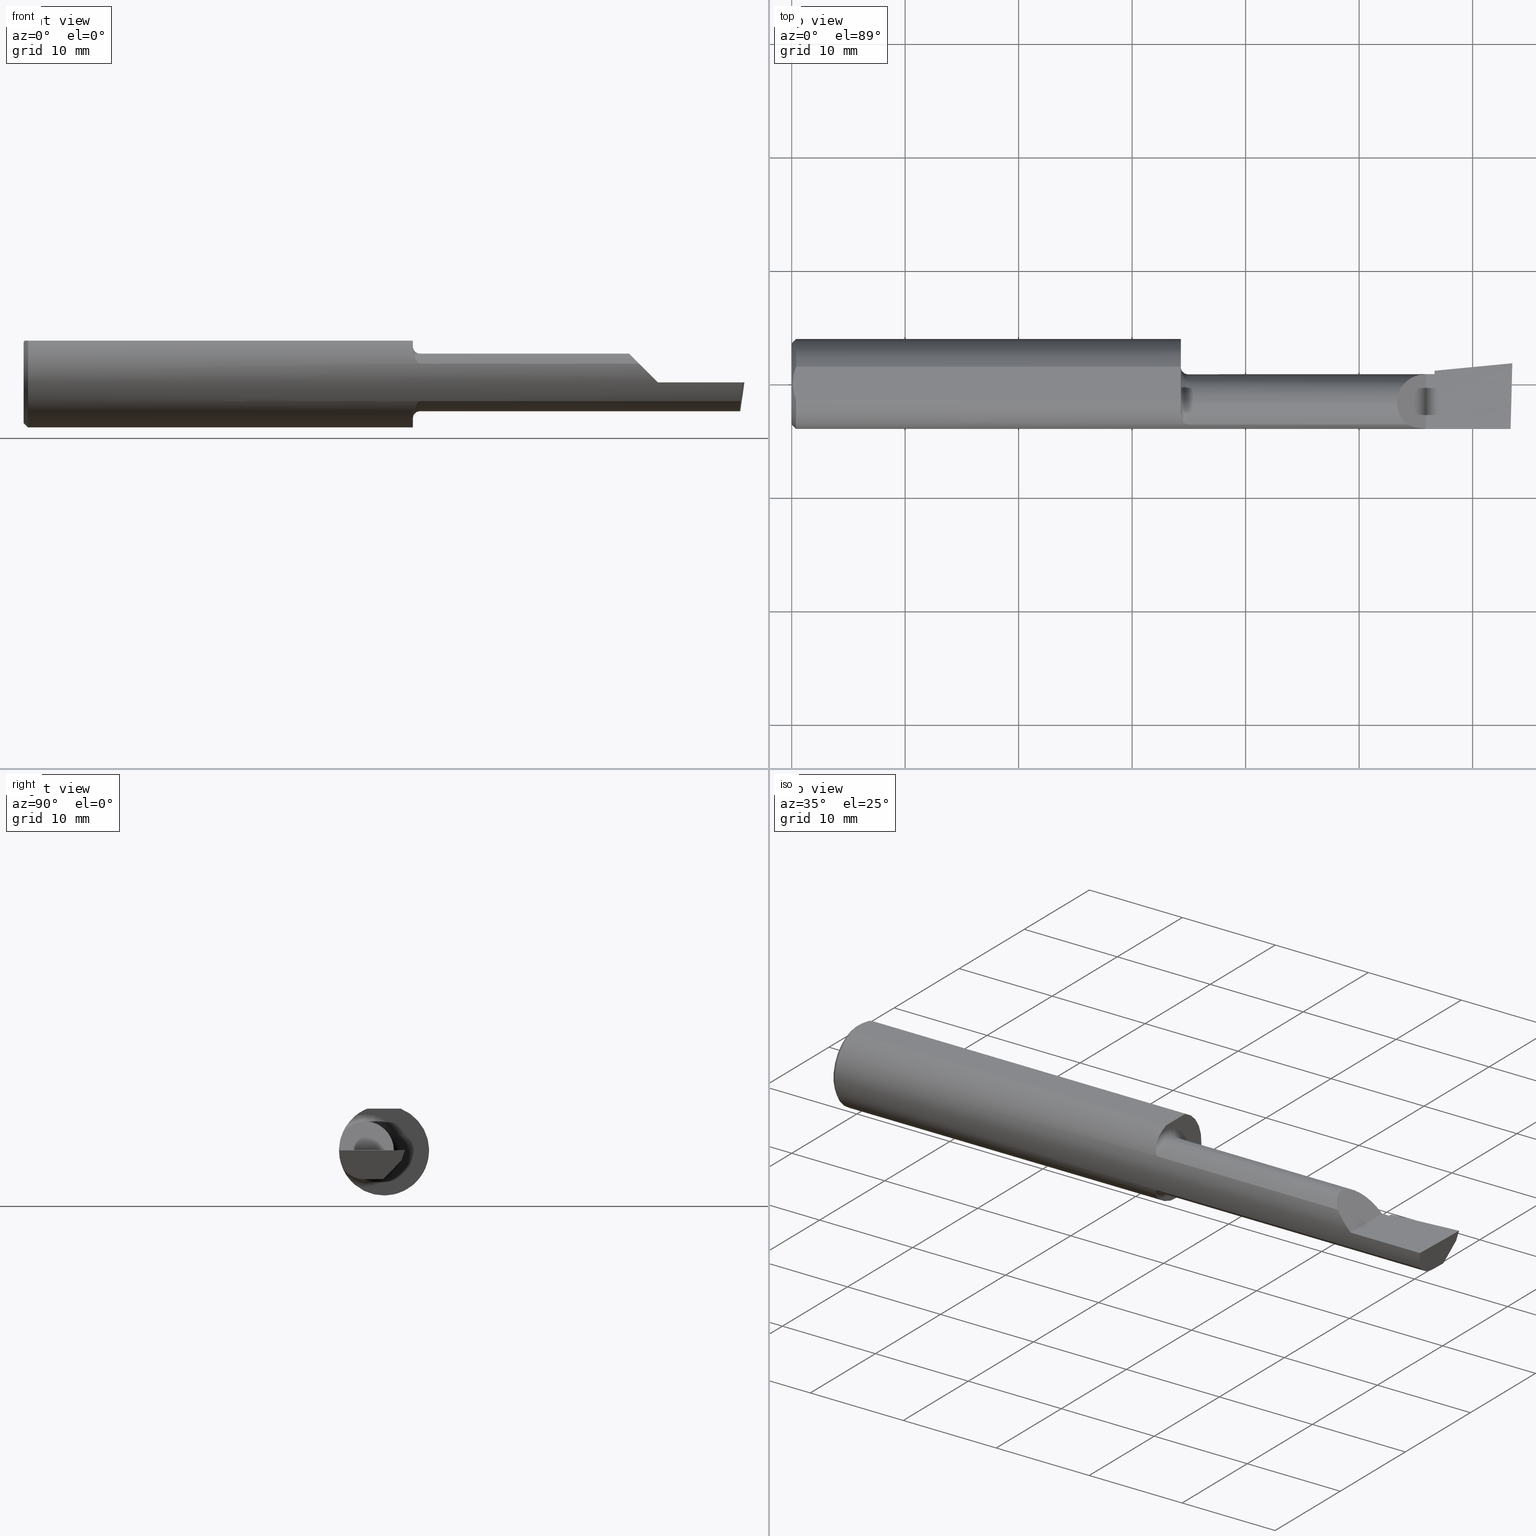
[diagram: canonical four-view strip — front | top / right | iso, engineering-drawing reading convention]
A machine part, canonical four-view strip (front | top / right | iso — engineering-drawing reading convention). The complete STEP part file that produces these views, byte-faithful:
ISO-10303-21;
HEADER;
FILE_DESCRIPTION (( 'STEP AP214' ),
    '1' );
FILE_NAME ('B2301100.STEP',
    '2020-05-07T17:20:48',
    ( '' ),
    ( '' ),
    'SwSTEP 2.0',
    'SolidWorks 2018',
    '' );
FILE_SCHEMA (( 'AUTOMOTIVE_DESIGN' ));
ENDSEC;

DATA;
#1 = ORIENTED_EDGE ( 'NONE', *, *, #421, .T. ) ;
#2 = ADVANCED_FACE ( 'NONE', ( #252 ), #132, .T. ) ;
#3 = CARTESIAN_POINT ( 'NONE',  ( 1.067853742648958049, -0.06599999999999998923, 2.099619311869716025E-16 ) ) ;
#4 = LINE ( 'NONE', #586, #578 ) ;
#5 = CARTESIAN_POINT ( 'NONE',  ( 1.375000000000000000, -0.06599999999999997535, -0.09989999999999990554 ) ) ;
#6 = EDGE_LOOP ( 'NONE', ( #677, #98, #688, #698, #505, #353 ) ) ;
#7 = DIRECTION ( 'NONE',  ( -0.7071067811865436870, 0.0000000000000000000, -0.7071067811865513475 ) ) ;
#8 = CYLINDRICAL_SURFACE ( 'NONE', #389, 0.09989999999999991942 ) ;
#9 = CARTESIAN_POINT ( 'NONE',  ( 2.500000000000000000, -0.06599999999999998923, -0.09990000000000000269 ) ) ;
#10 = EDGE_CURVE ( 'NONE', #329, #377, #473, .T. ) ;
#11 = APPLICATION_CONTEXT ( 'automotive_design' ) ;
#12 =( GEOMETRIC_REPRESENTATION_CONTEXT ( 3 ) GLOBAL_UNCERTAINTY_ASSIGNED_CONTEXT ( ( #242 ) ) GLOBAL_UNIT_ASSIGNED_CONTEXT ( ( #328, #674, #72 ) ) REPRESENTATION_CONTEXT ( 'NONE', 'WORKASPACE' ) );
#13 = ORIENTED_EDGE ( 'NONE', *, *, #517, .T. ) ;
#14 = DIRECTION ( 'NONE',  ( 0.0000000000000000000, -0.6963153109074925462, -0.7177360153954948085 ) ) ;
#15 = DIRECTION ( 'NONE',  ( -1.000000000000000000, 0.0000000000000000000, -0.0000000000000000000 ) ) ;
#16 = FACE_OUTER_BOUND ( 'NONE', #227, .T. ) ;
#17 = ORIENTED_EDGE ( 'NONE', *, *, #584, .T. ) ;
#18 = CIRCLE ( 'NONE', #240, 0.1410999999999996146 ) ;
#19 = DIRECTION ( 'NONE',  ( -1.000000000000000000, -0.0000000000000000000, -0.0000000000000000000 ) ) ;
#20 = EDGE_CURVE ( 'NONE', #376, #333, #214, .T. ) ;
#21 = ORIENTED_EDGE ( 'NONE', *, *, #39, .T. ) ;
#22 = ADVANCED_BREP_SHAPE_REPRESENTATION ( 'B2301100', ( #403, #139 ), #494 ) ;
#23 = DIRECTION ( 'NONE',  ( 0.0000000000000000000, 0.0000000000000000000, 1.000000000000000000 ) ) ;
#24 = CARTESIAN_POINT ( 'NONE',  ( 2.229999999999999982, 0.04590195698666438284, 0.0000000000000000000 ) ) ;
#25 = LINE ( 'NONE', #301, #458 ) ;
#26 = ORIENTED_EDGE ( 'NONE', *, *, #650, .T. ) ;
#27 = DIRECTION ( 'NONE',  ( -1.000000000000000000, -0.0000000000000000000, -0.0000000000000000000 ) ) ;
#28 = FACE_OUTER_BOUND ( 'NONE', #705, .T. ) ;
#29 = DIRECTION ( 'NONE',  ( -0.9953961983671800740, -0.09584575252021031166, 0.0000000000000000000 ) ) ;
#30 = CARTESIAN_POINT ( 'NONE',  ( 2.229999999999999982, 0.01597273520979028416, -0.05476916396232720669 ) ) ;
#31 = ORIENTED_EDGE ( 'NONE', *, *, #213, .T. ) ;
#32 = CARTESIAN_POINT ( 'NONE',  ( 2.500000000000015543, 0.07190000000002047531, 6.193638301338760095E-14 ) ) ;
#33 = LENGTH_MEASURE_WITH_UNIT ( LENGTH_MEASURE( 0.02539999999999999897 ), #628 );
#34 = DIRECTION ( 'NONE',  ( -1.000000000000000000, -0.0000000000000000000, -0.0000000000000000000 ) ) ;
#35 = VERTEX_POINT ( 'NONE', #5 ) ;
#36 = DIRECTION ( 'NONE',  ( 0.0000000000000000000, 1.000000000000000000, -1.656870447394628111E-16 ) ) ;
#37 = CARTESIAN_POINT ( 'NONE',  ( 1.350000000000000089, -0.06599999999999998923, 0.1248999999999999139 ) ) ;
#38 = ORIENTED_EDGE ( 'NONE', *, *, #549, .F. ) ;
#39 = EDGE_CURVE ( 'NONE', #432, #308, #25, .T. ) ;
#40 = DIRECTION ( 'NONE',  ( -0.9922060308645437310, 0.02598182930471210073, 0.1218693434051771191 ) ) ;
#41 = DIRECTION ( 'NONE',  ( -1.000000000000000000, 0.0000000000000000000, -0.0000000000000000000 ) ) ;
#42 = LINE ( 'NONE', #351, #634 ) ;
#43 = CARTESIAN_POINT ( 'NONE',  ( 0.004000000000000238608, 1.884449684559922719E-17, 0.1450999999999999790 ) ) ;
#44 = ADVANCED_FACE ( 'NONE', ( #431 ), #125, .F. ) ;
#45 = CARTESIAN_POINT ( 'NONE',  ( 2.482005098963840695, -0.1170392233017039929, -0.1062257522883767180 ) ) ;
#46 = DIRECTION ( 'NONE',  ( 0.1240019227989686140, 0.3022330132596660612, 0.9451342385281262803 ) ) ;
#47 = VECTOR ( 'NONE', #46, 39.37007874015748854 ) ;
#48 = AXIS2_PLACEMENT_3D ( 'NONE', #24, #373, #57 ) ;
#49 = PLANE ( 'NONE',  #48 ) ;
#50 =( BOUNDED_CURVE ( )  B_SPLINE_CURVE ( 3, ( #451, #154, #554, #229 ),
 .UNSPECIFIED., .F., .T. ) 
 B_SPLINE_CURVE_WITH_KNOTS ( ( 4, 4 ),
 ( 0.9323538202062678915, 1.360746882514633382 ),
 .UNSPECIFIED. ) 
 CURVE ( )  GEOMETRIC_REPRESENTATION_ITEM ( )  RATIONAL_B_SPLINE_CURVE ( ( 1.000000000000000000, 0.9847649979006014576, 0.9847649979006014576, 1.000000000000000000 ) ) 
 REPRESENTATION_ITEM ( '' )  );
#51 = EDGE_CURVE ( 'NONE', #333, #411, #305, .T. ) ;
#52 = VECTOR ( 'NONE', #354, 39.37007874015748854 ) ;
#53 = DIRECTION ( 'NONE',  ( -1.000000000000000000, -0.0000000000000000000, -0.0000000000000000000 ) ) ;
#54 = ORIENTED_EDGE ( 'NONE', *, *, #639, .F. ) ;
#55 = CARTESIAN_POINT ( 'NONE',  ( 2.485763474991733002, -0.003183957434557327902, -0.09990000000000001656 ) ) ;
#56 = ORIENTED_EDGE ( 'NONE', *, *, #616, .T. ) ;
#57 = DIRECTION ( 'NONE',  ( -0.0000000000000000000, 0.0000000000000000000, 1.000000000000000000 ) ) ;
#58 = CIRCLE ( 'NONE', #663, 0.1248999999999999139 ) ;
#59 = EDGE_CURVE ( 'NONE', #308, #392, #223, .T. ) ;
#60 = DIRECTION ( 'NONE',  ( 1.000000000000000000, 0.0000000000000000000, 0.0000000000000000000 ) ) ;
#61 = LINE ( 'NONE', #161, #384 ) ;
#62 = ORIENTED_EDGE ( 'NONE', *, *, #279, .T. ) ;
#63 = CARTESIAN_POINT ( 'NONE',  ( 2.200000000000000178, -0.1560999999999999888, 9.797174393178826150E-17 ) ) ;
#64 = CARTESIAN_POINT ( 'NONE',  ( 2.200000000000000178, -0.1560999999999999888, 9.797174393178826150E-17 ) ) ;
#65 = CARTESIAN_POINT ( 'NONE',  ( 0.0000000000000000000, 0.0000000000000000000, 0.0000000000000000000 ) ) ;
#66 = ORIENTED_EDGE ( 'NONE', *, *, #639, .T. ) ;
#67 =( NAMED_UNIT ( * ) PLANE_ANGLE_UNIT ( ) SI_UNIT ( $, .RADIAN. ) );
#68 = ORIENTED_EDGE ( 'NONE', *, *, #232, .T. ) ;
#69 = AXIS2_PLACEMENT_3D ( 'NONE', #491, #73, #439 ) ;
#70 = SURFACE_SIDE_STYLE ('',( #280 ) ) ;
#71 = ORIENTED_EDGE ( 'NONE', *, *, #599, .T. ) ;
#72 =( NAMED_UNIT ( * ) SI_UNIT ( $, .STERADIAN. ) SOLID_ANGLE_UNIT ( ) );
#73 = DIRECTION ( 'NONE',  ( -1.000000000000000000, -0.0000000000000000000, -0.0000000000000000000 ) ) ;
#74 = EDGE_CURVE ( 'NONE', #691, #569, #563, .T. ) ;
#75 = CIRCLE ( 'NONE', #510, 0.09989999999999993330 ) ;
#76 = B_SPLINE_CURVE_WITH_KNOTS ( 'NONE', 3,
 ( #43, #127, #497, #700, #367, #654 ),
 .UNSPECIFIED., .F., .F.,
 ( 4, 2, 4 ),
 ( 0.002889203944960327779, 0.003632851267233511670, 0.004376498589506695562 ),
 .UNSPECIFIED. ) ;
#77 =( NAMED_UNIT ( * ) SI_UNIT ( $, .STERADIAN. ) SOLID_ANGLE_UNIT ( ) );
#78 = CARTESIAN_POINT ( 'NONE',  ( 2.500188977433819293, 0.07236059946466855131, 0.001440373173036951305 ) ) ;
#79 = DIRECTION ( 'NONE',  ( 1.000000000000000000, 0.0000000000000000000, 0.0000000000000000000 ) ) ;
#80 = CIRCLE ( 'NONE', #538, 0.1560999999999999888 ) ;
#81 = CARTESIAN_POINT ( 'NONE',  ( 0.0000000000000000000, 0.0000000000000000000, 0.0000000000000000000 ) ) ;
#82 = DIRECTION ( 'NONE',  ( 0.0000000000000000000, -0.2936076258024059582, -0.9559260233253797923 ) ) ;
#83 = FILL_AREA_STYLE_COLOUR ( '', #689 ) ;
#84 = DIRECTION ( 'NONE',  ( -1.000000000000000000, -0.0000000000000000000, -0.0000000000000000000 ) ) ;
#85 = EDGE_LOOP ( 'NONE', ( #334, #264, #312, #407, #564, #681 ) ) ;
#86 = CARTESIAN_POINT ( 'NONE',  ( 2.229999999999999982, 0.04248346027991087293, -0.01112992196204300871 ) ) ;
#87 = CARTESIAN_POINT ( 'NONE',  ( 1.350000000000000089, -0.09941818181818193323, -0.1203463132961160309 ) ) ;
#88 = AXIS2_PLACEMENT_3D ( 'NONE', #190, #696, #90 ) ;
#89 = CARTESIAN_POINT ( 'NONE',  ( 1.375000000000000000, -0.1419939393939392003, 0.06484544066771598392 ) ) ;
#90 = DIRECTION ( 'NONE',  ( 0.0000000000000000000, 0.0000000000000000000, -1.000000000000000000 ) ) ;
#91 = CARTESIAN_POINT ( 'NONE',  ( 1.373328253254594289, -0.1419939393940947703, 0.06484544066737571444 ) ) ;
#92 = ORIENTED_EDGE ( 'NONE', *, *, #213, .F. ) ;
#93 = DIRECTION ( 'NONE',  ( 0.0000000000000000000, 0.0000000000000000000, 1.000000000000000000 ) ) ;
#94 = EDGE_CURVE ( 'NONE', #474, #664, #80, .T. ) ;
#95 = CONICAL_SURFACE ( 'NONE', #523, 0.1560999999999999888, 0.7853981633974602694 ) ;
#96 = PRODUCT ( 'B2301100', 'B2301100', '', ( #332 ) ) ;
#97 = DIRECTION ( 'NONE',  ( -1.000000000000000000, -0.0000000000000000000, -0.0000000000000000000 ) ) ;
#98 = ORIENTED_EDGE ( 'NONE', *, *, #244, .T. ) ;
#99 = ORIENTED_EDGE ( 'NONE', *, *, #137, .F. ) ;
#100 = CARTESIAN_POINT ( 'NONE',  ( 1.371727793412431895, -0.1417279534125322760, 0.06543130843947160546 ) ) ;
#101 = DIRECTION ( 'NONE',  ( -0.9953961983671800740, -0.09584575252021028391, 0.0000000000000000000 ) ) ;
#102 = LINE ( 'NONE', #3, #416 ) ;
#103 = ORIENTED_EDGE ( 'NONE', *, *, #626, .T. ) ;
#104 = DIRECTION ( 'NONE',  ( -1.000000000000000000, -0.0000000000000000000, -0.0000000000000000000 ) ) ;
#105 = AXIS2_PLACEMENT_3D ( 'NONE', #220, #283, #686 ) ;
#106 = ADVANCED_FACE ( 'NONE', ( #656 ), #187, .F. ) ;
#107 = CARTESIAN_POINT ( 'NONE',  ( 1.375000000000000000, -0.06599999999999998923, 0.09989999999999990554 ) ) ;
#108 = EDGE_CURVE ( 'NONE', #533, #569, #401, .T. ) ;
#109 = PLANE ( 'NONE',  #133 ) ;
#110 = CARTESIAN_POINT ( 'NONE',  ( 1.368988484139260553, -0.1409410548628159121, 0.06710952210203038892 ) ) ;
#111 = DIMENSIONAL_EXPONENTS ( 1.000000000000000000, 0.0000000000000000000, 0.0000000000000000000, 0.0000000000000000000, 0.0000000000000000000, 0.0000000000000000000, 0.0000000000000000000 ) ;
#112 = CARTESIAN_POINT ( 'NONE',  ( 1.367808428589329495, -0.1404263024719111519, 0.06818548243543454124 ) ) ;
#113 = CARTESIAN_POINT ( 'NONE',  ( 1.364666516289592790, -0.1387430930441309329, 0.07158177069671509130 ) ) ;
#114 = ORIENTED_EDGE ( 'NONE', *, *, #295, .T. ) ;
#115 = VECTOR ( 'NONE', #29, 39.37007874015748854 ) ;
#116 = AXIS2_PLACEMENT_3D ( 'NONE', #278, #335, #633 ) ;
#117 = CARTESIAN_POINT ( 'NONE',  ( 1.363017092274624975, -0.1374043365808045869, 0.07413505991998654843 ) ) ;
#118 = ORIENTED_EDGE ( 'NONE', *, *, #316, .F. ) ;
#119 = CARTESIAN_POINT ( 'NONE',  ( 1.358665904659250856, -0.1330436853938332664, 0.08186319721956639150 ) ) ;
#120 = EDGE_CURVE ( 'NONE', #664, #167, #274, .T. ) ;
#121 = ORIENTED_EDGE ( 'NONE', *, *, #559, .F. ) ;
#122 = ORIENTED_EDGE ( 'NONE', *, *, #391, .F. ) ;
#123 = CARTESIAN_POINT ( 'NONE',  ( 1.356590655429605885, -0.1296720675120677513, 0.08713405786343429715 ) ) ;
#124 = CARTESIAN_POINT ( 'NONE',  ( 2.494029609882228549, -0.1561000000000000165, 6.889038570631779204E-17 ) ) ;
#125 = PLANE ( 'NONE',  #500 ) ;
#126 = ORIENTED_EDGE ( 'NONE', *, *, #266, .F. ) ;
#127 = CARTESIAN_POINT ( 'NONE',  ( 0.004000000000000188301, 0.009855731042683129120, 0.1450999999999999790 ) ) ;
#128 = CARTESIAN_POINT ( 'NONE',  ( 1.353262464810605747, -0.1222000088982462124, 0.09733625715976103321 ) ) ;
#129 = CARTESIAN_POINT ( 'NONE',  ( 1.350000000000000089, -0.05756040305626776432, 0.1451000000000000068 ) ) ;
#130 = LINE ( 'NONE', #9, #704 ) ;
#131 = CARTESIAN_POINT ( 'NONE',  ( 1.352040506864491620, -0.1180407066556270063, 0.1023492120876696165 ) ) ;
#132 = CONICAL_SURFACE ( 'NONE', #402, 0.1560999999999999888, 0.7853981633974602694 ) ;
#133 = AXIS2_PLACEMENT_3D ( 'NONE', #45, #40, #475 ) ;
#134 = CARTESIAN_POINT ( 'NONE',  ( 1.350000000000000089, -0.09941818181818193323, 0.1203463132961160309 ) ) ;
#135 = LINE ( 'NONE', #453, #321 ) ;
#136 = ORIENTED_EDGE ( 'NONE', *, *, #151, .F. ) ;
#137 = EDGE_CURVE ( 'NONE', #392, #329, #258, .T. ) ;
#138 = CARTESIAN_POINT ( 'NONE',  ( 2.100099999999998523, -0.007479934881072268678, 0.09989999999999990554 ) ) ;
#139 = AXIS2_PLACEMENT_3D ( 'NONE', #65, #394, #632 ) ;
#140 = DIRECTION ( 'NONE',  ( 0.7071067811865390240, 0.0000000000000000000, -0.7071067811865560104 ) ) ;
#141 = VERTEX_POINT ( 'NONE', #158 ) ;
#142 = CARTESIAN_POINT ( 'NONE',  ( 2.491576527842699562, -0.2497794236187485528, 6.912943690626120576E-17 ) ) ;
#143 = AXIS2_PLACEMENT_3D ( 'NONE', #506, #507, #165 ) ;
#144 = CIRCLE ( 'NONE', #378, 0.02499999999999993894 ) ;
#145 = DIRECTION ( 'NONE',  ( -9.891848030060559526E-17, 0.0000000000000000000, -1.000000000000000000 ) ) ;
#146 = ORIENTED_EDGE ( 'NONE', *, *, #576, .T. ) ;
#147 =( CONVERSION_BASED_UNIT ( 'INCH', #233 ) LENGTH_UNIT ( ) NAMED_UNIT ( #565 ) );
#148 = CARTESIAN_POINT ( 'NONE',  ( 1.350415155711666371, -0.1091772789608304872, 0.1117554983051642081 ) ) ;
#149 = DIRECTION ( 'NONE',  ( 0.0000000000000000000, 0.0000000000000000000, 1.000000000000000000 ) ) ;
#150 = CARTESIAN_POINT ( 'NONE',  ( 2.229999999999999982, -0.06599999999999998923, 0.0000000000000000000 ) ) ;
#151 = EDGE_CURVE ( 'NONE', #691, #376, #61, .T. ) ;
#152 = FACE_OUTER_BOUND ( 'NONE', #413, .T. ) ;
#153 = DIRECTION ( 'NONE',  ( -0.02617694830789217206, -0.9996573249755568158, 0.0000000000000000000 ) ) ;
#154 = CARTESIAN_POINT ( 'NONE',  ( 2.488699611492197761, -0.1513252362624135094, -0.04441242967472185110 ) ) ;
#155 = CARTESIAN_POINT ( 'NONE',  ( 2.484129461495571345, -0.06558441532346195868, -0.09990000000000000269 ) ) ;
#156 = VERTEX_POINT ( 'NONE', #63 ) ;
#157 = DIRECTION ( 'NONE',  ( -1.000000000000000000, -0.0000000000000000000, -0.0000000000000000000 ) ) ;
#158 = CARTESIAN_POINT ( 'NONE',  ( 0.01499999999999999424, 0.0000000000000000000, -0.1560999999999999888 ) ) ;
#159 = DIRECTION ( 'NONE',  ( -1.000000000000000000, -0.0000000000000000000, -0.0000000000000000000 ) ) ;
#160 = LINE ( 'NONE', #692, #452 ) ;
#161 = CARTESIAN_POINT ( 'NONE',  ( 1.802499999999999991, -0.1419939393939394501, -0.06484544066771573412 ) ) ;
#162 = EDGE_LOOP ( 'NONE', ( #541, #146 ) ) ;
#163 = DIRECTION ( 'NONE',  ( 0.0000000000000000000, 0.6963153109074925462, 0.7177360153954946975 ) ) ;
#164 = SHAPE_DEFINITION_REPRESENTATION ( #522, #22 ) ;
#165 = DIRECTION ( 'NONE',  ( 0.0000000000000000000, 0.0000000000000000000, 1.000000000000000000 ) ) ;
#166 = B_SPLINE_CURVE_WITH_KNOTS ( 'NONE', 3,
 ( #450, #405, #642, #282, #596, #225 ),
 .UNSPECIFIED., .F., .F.,
 ( 4, 2, 4 ),
 ( 0.001402484879066372495, 0.002145844412013350570, 0.002889203944960327779 ),
 .UNSPECIFIED. ) ;
#167 = VERTEX_POINT ( 'NONE', #409 ) ;
#168 = DIRECTION ( 'NONE',  ( -1.000000000000000000, 0.0000000000000000000, 9.891848030060559526E-17 ) ) ;
#169 = CARTESIAN_POINT ( 'NONE',  ( 0.0000000000000000000, 1.819825143532964315E-17, 0.1410999999999996146 ) ) ;
#170 = VERTEX_POINT ( 'NONE', #32 ) ;
#171 = ORIENTED_EDGE ( 'NONE', *, *, #427, .F. ) ;
#172 = EDGE_CURVE ( 'NONE', #613, #170, #641, .T. ) ;
#173 = VECTOR ( 'NONE', #197, 39.37007874015748854 ) ;
#174 = DIRECTION ( 'NONE',  ( 0.0000000000000000000, 0.0000000000000000000, -1.000000000000000000 ) ) ;
#175 = CARTESIAN_POINT ( 'NONE',  ( 2.229999999999999982, 0.04590195698666438284, 0.0000000000000000000 ) ) ;
#176 = ADVANCED_FACE ( 'NONE', ( #521 ), #49, .F. ) ;
#177 = ORIENTED_EDGE ( 'NONE', *, *, #476, .T. ) ;
#178 = DIRECTION ( 'NONE',  ( 1.000000000000000000, 0.0000000000000000000, 0.0000000000000000000 ) ) ;
#179 = CARTESIAN_POINT ( 'NONE',  ( 2.200000000000000178, 0.03389999999999987468, 9.797174393178826150E-17 ) ) ;
#180 = LINE ( 'NONE', #438, #620 ) ;
#181 = ADVANCED_FACE ( 'NONE', ( #624 ), #109, .F. ) ;
#182 = DIRECTION ( 'NONE',  ( 0.0000000000000000000, 0.0000000000000000000, -1.000000000000000000 ) ) ;
#183 = DIRECTION ( 'NONE',  ( 1.000000000000000000, 0.0000000000000000000, 0.0000000000000000000 ) ) ;
#184 = LINE ( 'NONE', #361, #598 ) ;
#185 = AXIS2_PLACEMENT_3D ( 'NONE', #512, #104, #462 ) ;
#186 = CARTESIAN_POINT ( 'NONE',  ( 1.350000000000000089, 0.0000000000000000000, 0.0000000000000000000 ) ) ;
#187 = PLANE ( 'NONE',  #685 ) ;
#188 = EDGE_CURVE ( 'NONE', #411, #474, #374, .T. ) ;
#189 = CARTESIAN_POINT ( 'NONE',  ( 1.350000000000000311, -0.1044500923568690148, 0.1161894481365070009 ) ) ;
#190 = CARTESIAN_POINT ( 'NONE',  ( 1.375000000000000000, -0.06599999999999998923, 0.1248999999999999139 ) ) ;
#191 = PRODUCT_DEFINITION ( 'UNKNOWN', '', #235, #614 ) ;
#192 = VERTEX_POINT ( 'NONE', #532 ) ;
#193 = CIRCLE ( 'NONE', #69, 0.09989999999999990554 ) ;
#194 = ORIENTED_EDGE ( 'NONE', *, *, #666, .F. ) ;
#195 = EDGE_LOOP ( 'NONE', ( #299, #573, #442, #121 ) ) ;
#196 = AXIS2_PLACEMENT_3D ( 'NONE', #498, #496, #595 ) ;
#197 = DIRECTION ( 'NONE',  ( 0.1053106618242156955, 0.6976485211320162527, 0.7086580314005170855 ) ) ;
#198 = CIRCLE ( 'NONE', #196, 0.1248999999999999139 ) ;
#199 = EDGE_CURVE ( 'NONE', #250, #449, #245, .T. ) ;
#200 = CARTESIAN_POINT ( 'NONE',  ( 1.802499999999999991, -0.1419939393939394501, 0.06484544066771573412 ) ) ;
#201 = CIRCLE ( 'NONE', #185, 0.09989999999999990554 ) ;
#202 = VERTEX_POINT ( 'NONE', #430 ) ;
#203 = DIRECTION ( 'NONE',  ( 0.0000000000000000000, 0.0000000000000000000, 1.000000000000000000 ) ) ;
#204 =( BOUNDED_CURVE ( )  B_SPLINE_CURVE ( 3, ( #64, #383, #314, #667 ),
 .UNSPECIFIED., .F., .F. ) 
 B_SPLINE_CURVE_WITH_KNOTS ( ( 4, 4 ),
 ( 4.712388980384689674, 5.140782042693055942 ),
 .UNSPECIFIED. ) 
 CURVE ( )  GEOMETRIC_REPRESENTATION_ITEM ( )  RATIONAL_B_SPLINE_CURVE ( ( 1.000000000000000000, 0.9847649979006014576, 0.9847649979006014576, 1.000000000000000000 ) ) 
 REPRESENTATION_ITEM ( '' )  );
#205 = DIRECTION ( 'NONE',  ( -1.000000000000000000, -0.0000000000000000000, -0.0000000000000000000 ) ) ;
#206 = APPLICATION_PROTOCOL_DEFINITION ( 'draft international standard', 'automotive_design', 1998, #11 ) ;
#207 = AXIS2_PLACEMENT_3D ( 'NONE', #518, #380, #526 ) ;
#208 = EDGE_LOOP ( 'NONE', ( #231, #701, #38, #177 ) ) ;
#209 = SURFACE_STYLE_USAGE ( .BOTH. , #70 ) ;
#210 = VERTEX_POINT ( 'NONE', #124 ) ;
#211 = ORIENTED_EDGE ( 'NONE', *, *, #188, .F. ) ;
#212 = CARTESIAN_POINT ( 'NONE',  ( 1.350000000000000089, -0.09941818181818193323, 0.1203463132961160309 ) ) ;
#213 = EDGE_CURVE ( 'NONE', #379, #567, #76, .T. ) ;
#214 = B_SPLINE_CURVE_WITH_KNOTS ( 'NONE', 3,
 ( #350, #412, #352, #341, #337, #331, #327, #325, #322, #320, #317, #311, #309, #306 ),
 .UNSPECIFIED., .F., .F.,
 ( 4, 2, 2, 2, 2, 2, 4 ),
 ( 1.961289441070630364E-07, 0.0001258819157031949344, 0.0002515677024622827991, 0.0005029392759804585285, 0.001005682423016819637, 0.001508425570053180962, 0.002011168717089542504 ),
 .UNSPECIFIED. ) ;
#215 = CIRCLE ( 'NONE', #105, 0.1560999999999999888 ) ;
#216 = CARTESIAN_POINT ( 'NONE',  ( 2.484118579027826179, -0.06599999999999998923, -0.09990000000000000269 ) ) ;
#217 = ORIENTED_EDGE ( 'NONE', *, *, #172, .F. ) ;
#218 = SURFACE_STYLE_USAGE ( .BOTH. , #590 ) ;
#219 = EDGE_LOOP ( 'NONE', ( #26, #672 ) ) ;
#220 = CARTESIAN_POINT ( 'NONE',  ( 0.01499999999999999424, 0.0000000000000000000, 0.0000000000000000000 ) ) ;
#221 = DIRECTION ( 'NONE',  ( -0.0000000000000000000, 1.000000000000000000, -0.0000000000000000000 ) ) ;
#222 = VECTOR ( 'NONE', #619, 39.37007874015748143 ) ;
#223 = LINE ( 'NONE', #275, #445 ) ;
#224 = CARTESIAN_POINT ( 'NONE',  ( 2.486434241799654998, -0.1419939393939394501, -0.06484544066771573412 ) ) ;
#225 = CARTESIAN_POINT ( 'NONE',  ( 0.004000000000000238608, 1.884449684559922719E-17, 0.1450999999999999790 ) ) ;
#226 = DIRECTION ( 'NONE',  ( 1.000000000000000000, 0.0000000000000000000, 0.0000000000000000000 ) ) ;
#227 = EDGE_LOOP ( 'NONE', ( #362, #371, #56, #284 ) ) ;
#228 = PRESENTATION_STYLE_ASSIGNMENT (( #209 ) ) ;
#229 = CARTESIAN_POINT ( 'NONE',  ( 2.494029609882228549, -0.1561000000000000165, 6.889038570631779204E-17 ) ) ;
#230 = PLANE ( 'NONE',  #483 ) ;
#231 = ORIENTED_EDGE ( 'NONE', *, *, #255, .T. ) ;
#232 = EDGE_CURVE ( 'NONE', #449, #35, #201, .T. ) ;
#233 = LENGTH_MEASURE_WITH_UNIT ( LENGTH_MEASURE( 0.02539999999999999897 ), #548 );
#234 = ORIENTED_EDGE ( 'NONE', *, *, #476, .F. ) ;
#235 = PRODUCT_DEFINITION_FORMATION_WITH_SPECIFIED_SOURCE ( 'ANY', '', #96, .NOT_KNOWN. ) ;
#236 = DIRECTION ( 'NONE',  ( -1.000000000000000000, -0.0000000000000000000, -0.0000000000000000000 ) ) ;
#237 = ADVANCED_FACE ( 'NONE', ( #611 ), #239, .T. ) ;
#238 = CARTESIAN_POINT ( 'NONE',  ( 0.0000000000000000000, 0.0000000000000000000, 0.0000000000000000000 ) ) ;
#239 = PLANE ( 'NONE',  #300 ) ;
#240 = AXIS2_PLACEMENT_3D ( 'NONE', #502, #157, #552 ) ;
#241 = ORIENTED_EDGE ( 'NONE', *, *, #279, .F. ) ;
#242 = UNCERTAINTY_MEASURE_WITH_UNIT (LENGTH_MEASURE( 1.000000000000000082E-05 ), #328, 'distance_accuracy_value', 'NONE');
#243 = ADVANCED_FACE ( 'NONE', ( #28 ), #8, .T. ) ;
#244 = EDGE_CURVE ( 'NONE', #533, #202, #349, .T. ) ;
#245 = CIRCLE ( 'NONE', #88, 0.02499999999999993894 ) ;
#246 = VERTEX_POINT ( 'NONE', #169 ) ;
#247 = VERTEX_POINT ( 'NONE', #460 ) ;
#248 = AXIS2_PLACEMENT_3D ( 'NONE', #587, #15, #395 ) ;
#249 = DIRECTION ( 'NONE',  ( 0.0000000000000000000, 0.0000000000000000000, -1.000000000000000000 ) ) ;
#250 = VERTEX_POINT ( 'NONE', #37 ) ;
#251 = DIRECTION ( 'NONE',  ( -0.0000000000000000000, 1.000000000000000000, 1.224646799147353207E-16 ) ) ;
#252 = FACE_OUTER_BOUND ( 'NONE', #256, .T. ) ;
#253 = FACE_OUTER_BOUND ( 'NONE', #479, .T. ) ;
#254 = VERTEX_POINT ( 'NONE', #604 ) ;
#255 = EDGE_CURVE ( 'NONE', #601, #610, #468, .T. ) ;
#256 = EDGE_LOOP ( 'NONE', ( #267, #606, #288, #340, #386 ) ) ;
#257 = DIRECTION ( 'NONE',  ( 1.000000000000000000, 0.0000000000000000000, 0.0000000000000000000 ) ) ;
#258 = LINE ( 'NONE', #86, #536 ) ;
#259 = DIRECTION ( 'NONE',  ( -0.7071067811865513475, 0.0000000000000000000, 0.7071067811865436870 ) ) ;
#260 = LENGTH_MEASURE_WITH_UNIT ( LENGTH_MEASURE( 0.02539999999999999897 ), #669 );
#261 = DIRECTION ( 'NONE',  ( -1.000000000000000000, -0.0000000000000000000, -0.0000000000000000000 ) ) ;
#262 = CARTESIAN_POINT ( 'NONE',  ( 1.350000000000000089, 0.0000000000000000000, 0.0000000000000000000 ) ) ;
#263 =( CONVERSION_BASED_UNIT ( 'INCH', #260 ) LENGTH_UNIT ( ) NAMED_UNIT ( #657 ) );
#264 = ORIENTED_EDGE ( 'NONE', *, *, #108, .F. ) ;
#265 = LINE ( 'NONE', #499, #557 ) ;
#266 = EDGE_CURVE ( 'NONE', #610, #449, #184, .T. ) ;
#267 = ORIENTED_EDGE ( 'NONE', *, *, #304, .F. ) ;
#268 = DIRECTION ( 'NONE',  ( -1.000000000000000000, -0.0000000000000000000, -0.0000000000000000000 ) ) ;
#269 = FACE_OUTER_BOUND ( 'NONE', #594, .T. ) ;
#270 = PRODUCT_RELATED_PRODUCT_CATEGORY ( 'part', '', ( #96 ) ) ;
#271 = ORIENTED_EDGE ( 'NONE', *, *, #108, .T. ) ;
#272 = CARTESIAN_POINT ( 'NONE',  ( 2.495690841152410577, 0.06258158045839970485, -0.03309662379331571036 ) ) ;
#273 = ORIENTED_EDGE ( 'NONE', *, *, #120, .F. ) ;
#274 = B_SPLINE_CURVE_WITH_KNOTS ( 'NONE', 3,
 ( #134, #189, #148, #131, #128, #123, #119, #117, #113, #112, #110, #100, #91, #89 ),
 .UNSPECIFIED., .F., .F.,
 ( 4, 2, 2, 2, 2, 2, 4 ),
 ( 0.0001856976868807112932, 0.0006805519038525574115, 0.001175406120824403584, 0.001670260337796249757, 0.001917687446282172409, 0.002041401000525133735, 0.002165114554768095279 ),
 .UNSPECIFIED. ) ;
#275 = CARTESIAN_POINT ( 'NONE',  ( 2.229999999999999982, -0.2500000000000000555, 9.500418952277011559E-17 ) ) ;
#276 = FILL_AREA_STYLE ('',( #83 ) ) ;
#277 = DIRECTION ( 'NONE',  ( 0.0000000000000000000, 1.000000000000000000, 0.0000000000000000000 ) ) ;
#278 = CARTESIAN_POINT ( 'NONE',  ( 2.509953961983672599, 0.07285845752520209162, -6.829619984160658046E-17 ) ) ;
#279 = EDGE_CURVE ( 'NONE', #297, #35, #481, .T. ) ;
#280 = SURFACE_STYLE_FILL_AREA ( #583 ) ;
#281 = PLANE ( 'NONE',  #368 ) ;
#282 = CARTESIAN_POINT ( 'NONE',  ( 0.005011318927233133005, -0.01959047621504276041, 0.1450999999999999790 ) ) ;
#283 = DIRECTION ( 'NONE',  ( -1.000000000000000000, -0.0000000000000000000, -0.0000000000000000000 ) ) ;
#284 = ORIENTED_EDGE ( 'NONE', *, *, #675, .F. ) ;
#285 = CARTESIAN_POINT ( 'NONE',  ( 2.484162675884399540, -0.1227037540429563867, -0.08745207517224926064 ) ) ;
#286 = DIRECTION ( 'NONE',  ( 0.0000000000000000000, 0.0000000000000000000, -1.000000000000000000 ) ) ;
#287 = LINE ( 'NONE', #644, #115 ) ;
#288 = ORIENTED_EDGE ( 'NONE', *, *, #666, .T. ) ;
#289 = CARTESIAN_POINT ( 'NONE',  ( 2.495407988494083629, 0.06070777456484782730, -0.03500000000000000333 ) ) ;
#290 = DIRECTION ( 'NONE',  ( 1.000000000000000000, 0.0000000000000000000, 0.0000000000000000000 ) ) ;
#291 = CARTESIAN_POINT ( 'NONE',  ( 2.100099999999998968, -0.06599999999999998923, 0.09989999999999991942 ) ) ;
#292 = CARTESIAN_POINT ( 'NONE',  ( 2.500000000000000000, -0.2500000000000000555, 6.829619984160658046E-17 ) ) ;
#293 = DIRECTION ( 'NONE',  ( -1.000000000000000000, -0.0000000000000000000, -0.0000000000000000000 ) ) ;
#294 = ORIENTED_EDGE ( 'NONE', *, *, #675, .T. ) ;
#295 = EDGE_CURVE ( 'NONE', #210, #156, #160, .T. ) ;
#296 = ADVANCED_FACE ( 'NONE', ( #580 ), #230, .T. ) ;
#297 = VERTEX_POINT ( 'NONE', #357 ) ;
#298 = CIRCLE ( 'NONE', #562, 0.1248999999999999139 ) ;
#299 = ORIENTED_EDGE ( 'NONE', *, *, #59, .T. ) ;
#300 = AXIS2_PLACEMENT_3D ( 'NONE', #175, #41, #418 ) ;
#301 = CARTESIAN_POINT ( 'NONE',  ( 3.121792066109142165E-32, 0.03389999999999990937, 3.155924005931204823E-16 ) ) ;
#302 = ORIENTED_EDGE ( 'NONE', *, *, #199, .F. ) ;
#303 = CIRCLE ( 'NONE', #454, 0.1560999999999999888 ) ;
#304 = EDGE_CURVE ( 'NONE', #246, #379, #135, .T. ) ;
#305 = CIRCLE ( 'NONE', #467, 0.1560999999999999888 ) ;
#306 = CARTESIAN_POINT ( 'NONE',  ( 1.350000000000000089, -0.09941818181818193323, -0.1203463132961160309 ) ) ;
#307 = DIRECTION ( 'NONE',  ( 0.9953961983671787417, 0.09584575252022466130, -9.846307923948147589E-17 ) ) ;
#308 = VERTEX_POINT ( 'NONE', #406 ) ;
#309 = CARTESIAN_POINT ( 'NONE',  ( 1.349999999999999867, -0.1044772303701486382, -0.1161670294028995659 ) ) ;
#310 = LINE ( 'NONE', #200, #425 ) ;
#311 = CARTESIAN_POINT ( 'NONE',  ( 1.350428134837081684, -0.1092850169809857358, -0.1116497630123361728 ) ) ;
#312 = ORIENTED_EDGE ( 'NONE', *, *, #441, .T. ) ;
#313 = DIRECTION ( 'NONE',  ( 0.0000000000000000000, 0.0000000000000000000, 1.000000000000000000 ) ) ;
#314 = CARTESIAN_POINT ( 'NONE',  ( 2.155587570325277369, -0.1513252362624134539, 0.04441242967472197600 ) ) ;
#315 = VECTOR ( 'NONE', #140, 39.37007874015748143 ) ;
#316 = EDGE_CURVE ( 'NONE', #141, #247, #303, .T. ) ;
#317 = CARTESIAN_POINT ( 'NONE',  ( 1.352063943834881377, -0.1181307192064763728, -0.1022448908112566918 ) ) ;
#318 = PLANE ( 'NONE',  #415 ) ;
#319 = ORIENTED_EDGE ( 'NONE', *, *, #295, .F. ) ;
#320 = CARTESIAN_POINT ( 'NONE',  ( 1.353264033160802571, -0.1222037927935208795, -0.09733121088759354167 ) ) ;
#321 = VECTOR ( 'NONE', #687, 39.37007874015748143 ) ;
#322 = CARTESIAN_POINT ( 'NONE',  ( 1.356590010709525229, -0.1296703571699488189, -0.08713627291423986509 ) ) ;
#323 = PLANE ( 'NONE',  #534 ) ;
#324 = ORIENTED_EDGE ( 'NONE', *, *, #421, .F. ) ;
#325 = CARTESIAN_POINT ( 'NONE',  ( 1.358682090340783466, -0.1330572531291641103, -0.08183785561185245860 ) ) ;
#326 = AXIS2_PLACEMENT_3D ( 'NONE', #433, #539, #668 ) ;
#327 = CARTESIAN_POINT ( 'NONE',  ( 1.362996561902687809, -0.1373850824029525242, -0.07416982835688742948 ) ) ;
#328 =( CONVERSION_BASED_UNIT ( 'INCH', #33 ) LENGTH_UNIT ( ) NAMED_UNIT ( #111 ) );
#329 = VERTEX_POINT ( 'NONE', #600 ) ;
#330 = LINE ( 'NONE', #272, #173 ) ;
#331 = CARTESIAN_POINT ( 'NONE',  ( 1.364650979716348411, -0.1387334617349066934, -0.07160083655282353798 ) ) ;
#332 = PRODUCT_CONTEXT ( 'NONE', #11, 'mechanical' ) ;
#333 = VERTEX_POINT ( 'NONE', #87 ) ;
#334 = ORIENTED_EDGE ( 'NONE', *, *, #74, .T. ) ;
#335 = DIRECTION ( 'NONE',  ( -0.09165774897393341725, 0.9519021185660614393, -0.2923717047227302190 ) ) ;
#336 = EDGE_CURVE ( 'NONE', #613, #329, #287, .T. ) ;
#337 = CARTESIAN_POINT ( 'NONE',  ( 1.367803744158915924, -0.1404244429940954553, -0.06818941713933171500 ) ) ;
#338 = DIRECTION ( 'NONE',  ( -1.000000000000000000, -0.0000000000000000000, -0.0000000000000000000 ) ) ;
#339 = LINE ( 'NONE', #489, #315 ) ;
#340 = ORIENTED_EDGE ( 'NONE', *, *, #316, .T. ) ;
#341 = CARTESIAN_POINT ( 'NONE',  ( 1.368987086440955236, -0.1409404987250980346, -0.06711069163632696344 ) ) ;
#342 = CARTESIAN_POINT ( 'NONE',  ( 2.484118579027826179, -0.06599999999999998923, -0.09990000000000000269 ) ) ;
#343 = CARTESIAN_POINT ( 'NONE',  ( 2.229999999999999982, 0.02031953758082122655, -0.05028864118101800118 ) ) ;
#344 = ORIENTED_EDGE ( 'NONE', *, *, #188, .T. ) ;
#345 = FACE_OUTER_BOUND ( 'NONE', #208, .T. ) ;
#346 = CARTESIAN_POINT ( 'NONE',  ( 2.229999999999999982, -0.06599999999999998923, 0.0000000000000000000 ) ) ;
#347 = DIRECTION ( 'NONE',  ( 0.0000000000000000000, 1.000000000000000000, 0.0000000000000000000 ) ) ;
#348 = UNCERTAINTY_MEASURE_WITH_UNIT (LENGTH_MEASURE( 1.000000000000000082E-05 ), #147, 'distance_accuracy_value', 'NONE');
#349 = LINE ( 'NONE', #509, #501 ) ;
#350 = CARTESIAN_POINT ( 'NONE',  ( 1.375000000000000000, -0.1419939393939393113, -0.06484544066771588677 ) ) ;
#351 = CARTESIAN_POINT ( 'NONE',  ( 0.0000000000000000000, 0.05756040305626779902, 0.1450999999999999512 ) ) ;
#352 = CARTESIAN_POINT ( 'NONE',  ( 1.371725699135996290, -0.1417275062431946897, -0.06543227863119814580 ) ) ;
#353 = ORIENTED_EDGE ( 'NONE', *, *, #336, .F. ) ;
#354 = DIRECTION ( 'NONE',  ( 0.0000000000000000000, -0.6963153109074925462, -0.7177360153954948085 ) ) ;
#355 = CARTESIAN_POINT ( 'NONE',  ( 2.200000000000000178, -0.2500000000000000555, 9.797174393178826150E-17 ) ) ;
#356 = CARTESIAN_POINT ( 'NONE',  ( 2.229999999999999982, 0.01597273520979028416, -0.05476916396232720669 ) ) ;
#357 = CARTESIAN_POINT ( 'NONE',  ( 2.229999999999999982, -0.06599999999999998923, -0.09990000000000000269 ) ) ;
#358 = DIRECTION ( 'NONE',  ( -1.000000000000000000, -0.0000000000000000000, -0.0000000000000000000 ) ) ;
#359 = EDGE_CURVE ( 'NONE', #247, #379, #166, .T. ) ;
#360 = DIRECTION ( 'NONE',  ( 0.0000000000000000000, 0.0000000000000000000, -1.000000000000000000 ) ) ;
#361 = CARTESIAN_POINT ( 'NONE',  ( 0.0000000000000000000, -0.06599999999999998923, 0.09989999999999991942 ) ) ;
#362 = ORIENTED_EDGE ( 'NONE', *, *, #255, .F. ) ;
#363 = FACE_OUTER_BOUND ( 'NONE', #508, .T. ) ;
#364 = DIRECTION ( 'NONE',  ( 0.0000000000000000000, 0.0000000000000000000, 1.000000000000000000 ) ) ;
#365 = ORIENTED_EDGE ( 'NONE', *, *, #626, .F. ) ;
#366 = EDGE_LOOP ( 'NONE', ( #319, #469, #659, #487, #514, #621 ) ) ;
#367 = CARTESIAN_POINT ( 'NONE',  ( 0.01158831187866387301, 0.04830813087846569376, 0.1450999999999999512 ) ) ;
#368 = AXIS2_PLACEMENT_3D ( 'NONE', #447, #226, #597 ) ;
#369 = ADVANCED_FACE ( 'NONE', ( #568 ), #95, .T. ) ;
#370 = VECTOR ( 'NONE', #221, 39.37007874015748143 ) ;
#371 = ORIENTED_EDGE ( 'NONE', *, *, #488, .F. ) ;
#372 = EDGE_CURVE ( 'NONE', #297, #202, #265, .T. ) ;
#373 = DIRECTION ( 'NONE',  ( -1.000000000000000000, 0.0000000000000000000, -0.0000000000000000000 ) ) ;
#374 = LINE ( 'NONE', #574, #222 ) ;
#375 = DIRECTION ( 'NONE',  ( 1.000000000000000000, 0.0000000000000000000, 0.0000000000000000000 ) ) ;
#376 = VERTEX_POINT ( 'NONE', #448 ) ;
#377 = VERTEX_POINT ( 'NONE', #343 ) ;
#378 = AXIS2_PLACEMENT_3D ( 'NONE', #615, #251, #313 ) ;
#379 = VERTEX_POINT ( 'NONE', #640 ) ;
#380 = DIRECTION ( 'NONE',  ( -1.000000000000000000, -0.0000000000000000000, -0.0000000000000000000 ) ) ;
#381 = EDGE_CURVE ( 'NONE', #527, #377, #670, .T. ) ;
#382 = TOROIDAL_SURFACE ( 'NONE', #143, 0.1248999999999999139, 0.02499999999999993894 ) ;
#383 = CARTESIAN_POINT ( 'NONE',  ( 2.177537118629004453, -0.1560999999999999333, 0.02246288137099522117 ) ) ;
#384 = VECTOR ( 'NONE', #53, 39.37007874015748143 ) ;
#385 = CARTESIAN_POINT ( 'NONE',  ( 2.200000000000000178, -0.2500000000000000555, 9.797174393178826150E-17 ) ) ;
#386 = ORIENTED_EDGE ( 'NONE', *, *, #359, .T. ) ;
#387 = FILL_AREA_STYLE_COLOUR ( '', #388 ) ;
#388 = COLOUR_RGB ( '',0.7529411764705882248, 0.7529411764705882248, 0.7529411764705882248 ) ;
#389 = AXIS2_PLACEMENT_3D ( 'NONE', #651, #293, #364 ) ;
#390 = ORIENTED_EDGE ( 'NONE', *, *, #608, .F. ) ;
#391 = EDGE_CURVE ( 'NONE', #527, #297, #424, .T. ) ;
#392 = VERTEX_POINT ( 'NONE', #593 ) ;
#393 = ORIENTED_EDGE ( 'NONE', *, *, #488, .T. ) ;
#394 = DIRECTION ( 'NONE',  ( 0.0000000000000000000, 0.0000000000000000000, 1.000000000000000000 ) ) ;
#395 = DIRECTION ( 'NONE',  ( -0.0000000000000000000, 0.0000000000000000000, 1.000000000000000000 ) ) ;
#396 = VECTOR ( 'NONE', #592, 39.37007874015748854 ) ;
#397 = APPLICATION_PROTOCOL_DEFINITION ( 'draft international standard', 'automotive_design', 1998, #676 ) ;
#398 = CARTESIAN_POINT ( 'NONE',  ( 1.375000000000000000, -0.06599999999999998923, 0.0000000000000000000 ) ) ;
#399 = CARTESIAN_POINT ( 'NONE',  ( 1.350000000000000089, 0.05756040305626777820, 0.1450999999999999512 ) ) ;
#400 = CARTESIAN_POINT ( 'NONE',  ( 2.500000000000000000, 0.2061000000000000332, 0.1450999999999999512 ) ) ;
#401 = LINE ( 'NONE', #155, #422 ) ;
#402 = AXIS2_PLACEMENT_3D ( 'NONE', #417, #375, #360 ) ;
#403 = MANIFOLD_SOLID_BREP ( '091011F6-9B81-4276-A019-1BEA8D8BBDA6-GAAFaceID11', #618 ) ;
#404 = DIRECTION ( 'NONE',  ( 0.0000000000000000000, 0.0000000000000000000, 1.000000000000000000 ) ) ;
#405 = CARTESIAN_POINT ( 'NONE',  ( 0.01161840624095555018, -0.04838974479540033430, 0.1451000000000000345 ) ) ;
#406 = CARTESIAN_POINT ( 'NONE',  ( 2.229999999999999982, 0.03389999999999996488, 3.155924005931206302E-16 ) ) ;
#407 = ORIENTED_EDGE ( 'NONE', *, *, #172, .T. ) ;
#408 = CARTESIAN_POINT ( 'NONE',  ( 2.135154559332283597, -0.1419939393939393668, 0.06484544066771584514 ) ) ;
#409 = CARTESIAN_POINT ( 'NONE',  ( 1.375000000000000000, -0.1419939393939392003, 0.06484544066771598392 ) ) ;
#410 = PRESENTATION_STYLE_ASSIGNMENT (( #218 ) ) ;
#411 = VERTEX_POINT ( 'NONE', #399 ) ;
#412 = CARTESIAN_POINT ( 'NONE',  ( 1.373318217257565088, -0.1419939393939393668, -0.06484544066771587290 ) ) ;
#413 = EDGE_LOOP ( 'NONE', ( #647, #271, #484, #495 ) ) ;
#414 = CARTESIAN_POINT ( 'NONE',  ( 2.112547924827750112, -0.1227037540429563173, 0.08745207517224930227 ) ) ;
#415 = AXIS2_PLACEMENT_3D ( 'NONE', #385, #7, #259 ) ;
#416 = VECTOR ( 'NONE', #307, 39.37007874015748143 ) ;
#417 = CARTESIAN_POINT ( 'NONE',  ( 0.01499999999999999424, 0.0000000000000000000, 0.0000000000000000000 ) ) ;
#418 = DIRECTION ( 'NONE',  ( -0.0000000000000000000, 0.0000000000000000000, 1.000000000000000000 ) ) ;
#419 = ORIENTED_EDGE ( 'NONE', *, *, #703, .F. ) ;
#420 = ADVANCED_FACE ( 'NONE', ( #435 ), #678, .T. ) ;
#421 = EDGE_CURVE ( 'NONE', #35, #376, #193, .T. ) ;
#422 = VECTOR ( 'NONE', #153, 39.37007874015748143 ) ;
#423 = ADVANCED_FACE ( 'NONE', ( #363 ), #547, .T. ) ;
#424 = CIRCLE ( 'NONE', #582, 0.09989999999999993330 ) ;
#425 = VECTOR ( 'NONE', #60, 39.37007874015748143 ) ;
#426 = ORIENTED_EDGE ( 'NONE', *, *, #608, .T. ) ;
#427 = EDGE_CURVE ( 'NONE', #246, #254, #605, .T. ) ;
#428 = ORIENTED_EDGE ( 'NONE', *, *, #94, .T. ) ;
#429 = AXIS2_PLACEMENT_3D ( 'NONE', #81, #84, #443 ) ;
#430 = CARTESIAN_POINT ( 'NONE',  ( 2.229999999999999982, -0.02781117900520267347, -0.09990000000000000269 ) ) ;
#431 = FACE_OUTER_BOUND ( 'NONE', #366, .T. ) ;
#432 = VERTEX_POINT ( 'NONE', #179 ) ;
#433 = CARTESIAN_POINT ( 'NONE',  ( 1.375000000000000000, -0.06599999999999998923, 0.0000000000000000000 ) ) ;
#434 = DIRECTION ( 'NONE',  ( -1.000000000000000000, 5.691349986800549142E-18, -0.0000000000000000000 ) ) ;
#435 = FACE_OUTER_BOUND ( 'NONE', #558, .T. ) ;
#436 = CARTESIAN_POINT ( 'NONE',  ( 2.486434241799654998, -0.1419939393939394501, -0.06484544066771573412 ) ) ;
#437 = ORIENTED_EDGE ( 'NONE', *, *, #381, .F. ) ;
#438 = CARTESIAN_POINT ( 'NONE',  ( 2.229999999999999982, 0.01597273520979028416, -0.05476916396232720669 ) ) ;
#439 = DIRECTION ( 'NONE',  ( 0.0000000000000000000, 0.0000000000000000000, 1.000000000000000000 ) ) ;
#440 = EDGE_LOOP ( 'NONE', ( #171, #694, #31, #426, #194 ) ) ;
#441 = EDGE_CURVE ( 'NONE', #533, #613, #330, .T. ) ;
#442 = ORIENTED_EDGE ( 'NONE', *, *, #10, .T. ) ;
#443 = DIRECTION ( 'NONE',  ( 0.0000000000000000000, 0.0000000000000000000, 1.000000000000000000 ) ) ;
#444 = DIRECTION ( 'NONE',  ( 0.0000000000000000000, -3.589139631315664435E-15, 1.000000000000000000 ) ) ;
#445 = VECTOR ( 'NONE', #277, 39.37007874015748143 ) ;
#446 = FACE_OUTER_BOUND ( 'NONE', #461, .T. ) ;
#447 = CARTESIAN_POINT ( 'NONE',  ( 1.350000000000000089, 0.05889999999999991770, 0.0000000000000000000 ) ) ;
#448 = CARTESIAN_POINT ( 'NONE',  ( 1.375000000000000000, -0.1419939393939393113, -0.06484544066771588677 ) ) ;
#449 = VERTEX_POINT ( 'NONE', #107 ) ;
#450 = CARTESIAN_POINT ( 'NONE',  ( 0.01499999999999999424, -0.05756040305626774350, 0.1451000000000000068 ) ) ;
#451 = CARTESIAN_POINT ( 'NONE',  ( 2.486434241799654998, -0.1419939393939394501, -0.06484544066771573412 ) ) ;
#452 = VECTOR ( 'NONE', #34, 39.37007874015748143 ) ;
#453 = CARTESIAN_POINT ( 'NONE',  ( 0.01499999999999999424, 1.911673653469018068E-17, 0.1560999999999999888 ) ) ;
#454 = AXIS2_PLACEMENT_3D ( 'NONE', #553, #159, #503 ) ;
#455 = CARTESIAN_POINT ( 'NONE',  ( 1.350000000000000089, -0.06599999999999998923, 0.0000000000000000000 ) ) ;
#456 = CARTESIAN_POINT ( 'NONE',  ( 0.0000000000000000000, -0.06599999999999998923, -0.09989999999999991942 ) ) ;
#457 = ORIENTED_EDGE ( 'NONE', *, *, #120, .T. ) ;
#458 = VECTOR ( 'NONE', #290, 39.37007874015748143 ) ;
#459 = EDGE_CURVE ( 'NONE', #210, #170, #472, .T. ) ;
#460 = CARTESIAN_POINT ( 'NONE',  ( 0.01499999999999999424, -0.05756040305626774350, 0.1451000000000000068 ) ) ;
#461 = EDGE_LOOP ( 'NONE', ( #603, #62, #635, #126, #294, #21, #589, #437 ) ) ;
#462 = DIRECTION ( 'NONE',  ( 0.0000000000000000000, 0.0000000000000000000, 1.000000000000000000 ) ) ;
#463 = ADVANCED_FACE ( 'NONE', ( #711 ), #464, .F. ) ;
#464 = TOROIDAL_SURFACE ( 'NONE', #326, 0.1248999999999999139, 0.02499999999999993894 ) ;
#465 = ORIENTED_EDGE ( 'NONE', *, *, #710, .F. ) ;
#466 = ADVANCED_FACE ( 'NONE', ( #16 ), #318, .F. ) ;
#467 = AXIS2_PLACEMENT_3D ( 'NONE', #262, #257, #249 ) ;
#468 =( BOUNDED_CURVE ( )  B_SPLINE_CURVE ( 3, ( #695, #414, #648, #291 ),
 .UNSPECIFIED., .F., .F. ) 
 B_SPLINE_CURVE_WITH_KNOTS ( ( 4, 4 ),
 ( 5.418794317430680962, 6.283185307179586232 ),
 .UNSPECIFIED. ) 
 CURVE ( )  GEOMETRIC_REPRESENTATION_ITEM ( )  RATIONAL_B_SPLINE_CURVE ( ( 1.000000000000000000, 0.9386988813357772798, 0.9386988813357772798, 1.000000000000000000 ) ) 
 REPRESENTATION_ITEM ( '' )  );
#469 = ORIENTED_EDGE ( 'NONE', *, *, #459, .T. ) ;
#470 = ORIENTED_EDGE ( 'NONE', *, *, #94, .F. ) ;
#471 = DIRECTION ( 'NONE',  ( 0.0000000000000000000, -1.656870447394628111E-16, -1.000000000000000000 ) ) ;
#472 = LINE ( 'NONE', #142, #588 ) ;
#473 = LINE ( 'NONE', #356, #52 ) ;
#474 = VERTEX_POINT ( 'NONE', #129 ) ;
#475 = DIRECTION ( 'NONE',  ( 0.1219104985253126050, 0.0000000000000000000, 0.9925410975618641496 ) ) ;
#476 = EDGE_CURVE ( 'NONE', #167, #601, #310, .T. ) ;
#477 = DIRECTION ( 'NONE',  ( -0.0000000000000000000, 0.0000000000000000000, 1.000000000000000000 ) ) ;
#478 = FACE_OUTER_BOUND ( 'NONE', #543, .T. ) ;
#479 = EDGE_LOOP ( 'NONE', ( #302, #465, #457, #515 ) ) ;
#480 = DIRECTION ( 'NONE',  ( 0.02617694830789217553, 0.9996573249755568158, -2.550926060776988469E-18 ) ) ;
#481 = LINE ( 'NONE', #456, #706 ) ;
#482 = ORIENTED_EDGE ( 'NONE', *, *, #372, .F. ) ;
#483 = AXIS2_PLACEMENT_3D ( 'NONE', #645, #555, #163 ) ;
#484 = ORIENTED_EDGE ( 'NONE', *, *, #703, .T. ) ;
#485 =( NAMED_UNIT ( * ) SI_UNIT ( $, .STERADIAN. ) SOLID_ANGLE_UNIT ( ) );
#486 = CARTESIAN_POINT ( 'NONE',  ( 2.100099999999998968, -0.06599999999999998923, 0.09989999999999991942 ) ) ;
#487 = ORIENTED_EDGE ( 'NONE', *, *, #59, .F. ) ;
#488 = EDGE_CURVE ( 'NONE', #156, #601, #204, .T. ) ;
#489 = CARTESIAN_POINT ( 'NONE',  ( 0.01499999999999999424, 0.0000000000000000000, -0.1560999999999999888 ) ) ;
#490 = ORIENTED_EDGE ( 'NONE', *, *, #690, .T. ) ;
#491 = CARTESIAN_POINT ( 'NONE',  ( 1.375000000000000000, -0.06599999999999998923, 0.0000000000000000000 ) ) ;
#492 =( NAMED_UNIT ( * ) PLANE_ANGLE_UNIT ( ) SI_UNIT ( $, .RADIAN. ) );
#493 = LINE ( 'NONE', #355, #370 ) ;
#494 =( GEOMETRIC_REPRESENTATION_CONTEXT ( 3 ) GLOBAL_UNCERTAINTY_ASSIGNED_CONTEXT ( ( #623 ) ) GLOBAL_UNIT_ASSIGNED_CONTEXT ( ( #263, #67, #485 ) ) REPRESENTATION_CONTEXT ( 'NONE', 'WORKASPACE' ) );
#495 = ORIENTED_EDGE ( 'NONE', *, *, #372, .T. ) ;
#496 = DIRECTION ( 'NONE',  ( -1.000000000000000000, -0.0000000000000000000, -0.0000000000000000000 ) ) ;
#497 = CARTESIAN_POINT ( 'NONE',  ( 0.005030132703184950031, 0.01970541148932063169, 0.1451000000000000068 ) ) ;
#498 = CARTESIAN_POINT ( 'NONE',  ( 1.350000000000000089, -0.06599999999999998923, 0.0000000000000000000 ) ) ;
#499 = CARTESIAN_POINT ( 'NONE',  ( 2.229999999999999982, -0.06599999999999998923, -0.09990000000000000269 ) ) ;
#500 = AXIS2_PLACEMENT_3D ( 'NONE', #292, #145, #168 ) ;
#501 = VECTOR ( 'NONE', #101, 39.37007874015748854 ) ;
#502 = CARTESIAN_POINT ( 'NONE',  ( 0.0000000000000000000, 0.0000000000000000000, 0.0000000000000000000 ) ) ;
#503 = DIRECTION ( 'NONE',  ( 0.0000000000000000000, 0.0000000000000000000, 1.000000000000000000 ) ) ;
#504 = ORIENTED_EDGE ( 'NONE', *, *, #199, .T. ) ;
#505 = ORIENTED_EDGE ( 'NONE', *, *, #10, .F. ) ;
#506 = CARTESIAN_POINT ( 'NONE',  ( 1.375000000000000000, -0.06599999999999998923, 0.0000000000000000000 ) ) ;
#507 = DIRECTION ( 'NONE',  ( -1.000000000000000000, -0.0000000000000000000, -0.0000000000000000000 ) ) ;
#508 = EDGE_LOOP ( 'NONE', ( #122, #511, #482 ) ) ;
#509 = CARTESIAN_POINT ( 'NONE',  ( 2.493876284481119754, -0.002402782730616384674, -0.09990000000000000269 ) ) ;
#510 = AXIS2_PLACEMENT_3D ( 'NONE', #346, #683, #404 ) ;
#511 = ORIENTED_EDGE ( 'NONE', *, *, #658, .T. ) ;
#512 = CARTESIAN_POINT ( 'NONE',  ( 1.375000000000000000, -0.06599999999999998923, 0.0000000000000000000 ) ) ;
#513 = FACE_OUTER_BOUND ( 'NONE', #524, .T. ) ;
#514 = ORIENTED_EDGE ( 'NONE', *, *, #39, .F. ) ;
#515 = ORIENTED_EDGE ( 'NONE', *, *, #549, .T. ) ;
#516 = ORIENTED_EDGE ( 'NONE', *, *, #20, .F. ) ;
#517 = EDGE_CURVE ( 'NONE', #192, #35, #144, .T. ) ;
#518 = CARTESIAN_POINT ( 'NONE',  ( 0.0000000000000000000, 0.0000000000000000000, 0.0000000000000000000 ) ) ;
#519 = ADVANCED_FACE ( 'NONE', ( #345 ), #546, .T. ) ;
#520 =( BOUNDED_CURVE ( )  B_SPLINE_CURVE ( 3, ( #486, #138, #673, #544 ),
 .UNSPECIFIED., .F., .F. ) 
 B_SPLINE_CURVE_WITH_KNOTS ( ( 4, 4 ),
 ( 0.0000000000000000000, 1.570796326794896114 ),
 .UNSPECIFIED. ) 
 CURVE ( )  GEOMETRIC_REPRESENTATION_ITEM ( )  RATIONAL_B_SPLINE_CURVE ( ( 1.000000000000000000, 0.8047378541243650485, 0.8047378541243650485, 1.000000000000000000 ) ) 
 REPRESENTATION_ITEM ( '' )  );
#521 = FACE_OUTER_BOUND ( 'NONE', #162, .T. ) ;
#522 = PRODUCT_DEFINITION_SHAPE ( 'NONE', 'NONE',  #191 ) ;
#523 = AXIS2_PLACEMENT_3D ( 'NONE', #684, #551, #286 ) ;
#524 = EDGE_LOOP ( 'NONE', ( #709, #54, #504, #68 ) ) ;
#525 = ORIENTED_EDGE ( 'NONE', *, *, #20, .T. ) ;
#526 = DIRECTION ( 'NONE',  ( 0.0000000000000000000, 0.0000000000000000000, 1.000000000000000000 ) ) ;
#527 = VERTEX_POINT ( 'NONE', #661 ) ;
#528 = EDGE_CURVE ( 'NONE', #392, #170, #102, .T. ) ;
#529 = ORIENTED_EDGE ( 'NONE', *, *, #359, .F. ) ;
#530 = LINE ( 'NONE', #30, #396 ) ;
#531 = ORIENTED_EDGE ( 'NONE', *, *, #51, .T. ) ;
#532 = CARTESIAN_POINT ( 'NONE',  ( 1.350000000000000089, -0.06599999999999997535, -0.1248999999999999139 ) ) ;
#533 = VERTEX_POINT ( 'NONE', #55 ) ;
#534 = AXIS2_PLACEMENT_3D ( 'NONE', #625, #477, #535 ) ;
#535 = DIRECTION ( 'NONE',  ( 1.000000000000000000, 0.0000000000000000000, 0.0000000000000000000 ) ) ;
#536 = VECTOR ( 'NONE', #82, 39.37007874015747433 ) ;
#537 = DIRECTION ( 'NONE',  ( -1.000000000000000000, -0.0000000000000000000, -0.0000000000000000000 ) ) ;
#538 = AXIS2_PLACEMENT_3D ( 'NONE', #186, #183, #182 ) ;
#539 = DIRECTION ( 'NONE',  ( -1.000000000000000000, -0.0000000000000000000, -0.0000000000000000000 ) ) ;
#540 = CARTESIAN_POINT ( 'NONE',  ( 1.350000000000000089, -0.06599999999999998923, 0.0000000000000000000 ) ) ;
#541 = ORIENTED_EDGE ( 'NONE', *, *, #381, .T. ) ;
#542 = SURFACE_STYLE_FILL_AREA ( #276 ) ;
#543 = EDGE_LOOP ( 'NONE', ( #136, #17, #114, #393, #234, #273, #470, #490, #118, #390, #103, #708, #516 ) ) ;
#544 = CARTESIAN_POINT ( 'NONE',  ( 2.200000000000000178, 0.03389999999999987468, 9.797174393178826150E-17 ) ) ;
#545 = AXIS2_PLACEMENT_3D ( 'NONE', #398, #19, #149 ) ;
#546 = CYLINDRICAL_SURFACE ( 'NONE', #572, 0.09989999999999991942 ) ;
#547 = PLANE ( 'NONE',  #248 ) ;
#548 =( LENGTH_UNIT ( ) NAMED_UNIT ( * ) SI_UNIT ( $, .METRE. ) );
#549 = EDGE_CURVE ( 'NONE', #167, #449, #662, .T. ) ;
#550 = PLANE ( 'NONE',  #697 ) ;
#551 = DIRECTION ( 'NONE',  ( 1.000000000000000000, 0.0000000000000000000, 0.0000000000000000000 ) ) ;
#552 = DIRECTION ( 'NONE',  ( 0.0000000000000000000, 0.0000000000000000000, 1.000000000000000000 ) ) ;
#553 = CARTESIAN_POINT ( 'NONE',  ( 0.01499999999999999424, 0.0000000000000000000, 0.0000000000000000000 ) ) ;
#554 = CARTESIAN_POINT ( 'NONE',  ( 2.491270569402211699, -0.1560999999999999333, -0.02246288137099513443 ) ) ;
#555 = DIRECTION ( 'NONE',  ( -0.06894566448119622548, 0.7160281025913034503, -0.6946583704589934793 ) ) ;
#556 = AXIS2_PLACEMENT_3D ( 'NONE', #150, #79, #444 ) ;
#557 = VECTOR ( 'NONE', #347, 39.37007874015748143 ) ;
#558 = EDGE_LOOP ( 'NONE', ( #217, #649, #99, #617 ) ) ;
#559 = EDGE_CURVE ( 'NONE', #308, #377, #75, .T. ) ;
#560 = ORIENTED_EDGE ( 'NONE', *, *, #710, .T. ) ;
#561 = ADVANCED_FACE ( 'NONE', ( #253 ), #652, .F. ) ;
#562 = AXIS2_PLACEMENT_3D ( 'NONE', #540, #205, #581 ) ;
#563 =( BOUNDED_CURVE ( )  B_SPLINE_CURVE ( 3, ( #224, #285, #622, #216 ),
 .UNSPECIFIED., .F., .T. ) 
 B_SPLINE_CURVE_WITH_KNOTS ( ( 4, 4 ),
 ( 5.628843761710943028, 6.493234751459850074 ),
 .UNSPECIFIED. ) 
 CURVE ( )  GEOMETRIC_REPRESENTATION_ITEM ( )  RATIONAL_B_SPLINE_CURVE ( ( 1.000000000000000000, 0.9386988813357769468, 0.9386988813357769468, 1.000000000000000000 ) ) 
 REPRESENTATION_ITEM ( '' )  );
#564 = ORIENTED_EDGE ( 'NONE', *, *, #459, .F. ) ;
#565 = DIMENSIONAL_EXPONENTS ( 1.000000000000000000, 0.0000000000000000000, 0.0000000000000000000, 0.0000000000000000000, 0.0000000000000000000, 0.0000000000000000000, 0.0000000000000000000 ) ;
#566 = CYLINDRICAL_SURFACE ( 'NONE', #570, 0.09989999999999991942 ) ;
#567 = VERTEX_POINT ( 'NONE', #682 ) ;
#568 = FACE_OUTER_BOUND ( 'NONE', #440, .T. ) ;
#569 = VERTEX_POINT ( 'NONE', #342 ) ;
#570 = AXIS2_PLACEMENT_3D ( 'NONE', #579, #261, #203 ) ;
#571 = ADVANCED_FACE ( 'NONE', ( #269 ), #550, .F. ) ;
#572 = AXIS2_PLACEMENT_3D ( 'NONE', #665, #537, #577 ) ;
#573 = ORIENTED_EDGE ( 'NONE', *, *, #137, .T. ) ;
#574 = CARTESIAN_POINT ( 'NONE',  ( 1.350000000000000089, 0.2061000000000000332, 0.1450999999999999512 ) ) ;
#575 = ORIENTED_EDGE ( 'NONE', *, *, #151, .T. ) ;
#576 = EDGE_CURVE ( 'NONE', #377, #527, #530, .T. ) ;
#577 = DIRECTION ( 'NONE',  ( 0.0000000000000000000, 0.0000000000000000000, 1.000000000000000000 ) ) ;
#578 = VECTOR ( 'NONE', #268, 39.37007874015748143 ) ;
#579 = CARTESIAN_POINT ( 'NONE',  ( 0.0000000000000000000, -0.06599999999999998923, 0.0000000000000000000 ) ) ;
#580 = FACE_OUTER_BOUND ( 'NONE', #6, .T. ) ;
#581 = DIRECTION ( 'NONE',  ( 0.0000000000000000000, 0.0000000000000000000, 1.000000000000000000 ) ) ;
#582 = AXIS2_PLACEMENT_3D ( 'NONE', #680, #338, #638 ) ;
#583 = FILL_AREA_STYLE ('',( #387 ) ) ;
#584 = EDGE_CURVE ( 'NONE', #691, #210, #50, .T. ) ;
#585 = EDGE_LOOP ( 'NONE', ( #531, #344, #428, #560, #66, #71 ) ) ;
#586 = CARTESIAN_POINT ( 'NONE',  ( 0.0000000000000000000, -0.05756040305626774350, 0.1451000000000000068 ) ) ;
#587 = CARTESIAN_POINT ( 'NONE',  ( 2.229999999999999982, 0.04590195698666438284, 0.0000000000000000000 ) ) ;
#588 = VECTOR ( 'NONE', #480, 39.37007874015748143 ) ;
#589 = ORIENTED_EDGE ( 'NONE', *, *, #559, .T. ) ;
#590 = SURFACE_SIDE_STYLE ('',( #542 ) ) ;
#591 = CYLINDRICAL_SURFACE ( 'NONE', #429, 0.1560999999999999888 ) ;
#592 = DIRECTION ( 'NONE',  ( 0.0000000000000000000, -0.6963153109074925462, -0.7177360153954948085 ) ) ;
#593 = CARTESIAN_POINT ( 'NONE',  ( 2.229999999999999982, 0.04590195698666835883, 3.180041805124806541E-16 ) ) ;
#594 = EDGE_LOOP ( 'NONE', ( #211, #365, #92, #529, #629 ) ) ;
#595 = DIRECTION ( 'NONE',  ( 0.0000000000000000000, 0.0000000000000000000, 1.000000000000000000 ) ) ;
#596 = CARTESIAN_POINT ( 'NONE',  ( 0.004000000000000188301, -0.009851916903761191377, 0.1450999999999999512 ) ) ;
#597 = DIRECTION ( 'NONE',  ( 0.0000000000000000000, 0.0000000000000000000, -1.000000000000000000 ) ) ;
#598 = VECTOR ( 'NONE', #236, 39.37007874015748143 ) ;
#599 = EDGE_CURVE ( 'NONE', #192, #333, #58, .T. ) ;
#600 = CARTESIAN_POINT ( 'NONE',  ( 2.229999999999999982, 0.03515189196873293176, -0.03500000000000000333 ) ) ;
#601 = VERTEX_POINT ( 'NONE', #408 ) ;
#602 = CARTESIAN_POINT ( 'NONE',  ( 2.100099999999998968, -0.06599999999999998923, 0.09989999999999991942 ) ) ;
#603 = ORIENTED_EDGE ( 'NONE', *, *, #391, .T. ) ;
#604 = CARTESIAN_POINT ( 'NONE',  ( 0.0000000000000000000, 0.0000000000000000000, -0.1410999999999996146 ) ) ;
#605 = CIRCLE ( 'NONE', #207, 0.1410999999999996146 ) ;
#606 = ORIENTED_EDGE ( 'NONE', *, *, #650, .F. ) ;
#607 = ADVANCED_FACE ( 'NONE', ( #513 ), #382, .F. ) ;
#608 = EDGE_CURVE ( 'NONE', #567, #141, #215, .T. ) ;
#609 = FACE_OUTER_BOUND ( 'NONE', #585, .T. ) ;
#610 = VERTEX_POINT ( 'NONE', #602 ) ;
#611 = FACE_OUTER_BOUND ( 'NONE', #195, .T. ) ;
#612 = STYLED_ITEM ( 'NONE', ( #410 ), #403 ) ;
#613 = VERTEX_POINT ( 'NONE', #289 ) ;
#614 = PRODUCT_DEFINITION_CONTEXT ( 'detailed design', #676, 'design' ) ;
#615 = CARTESIAN_POINT ( 'NONE',  ( 1.375000000000000000, -0.06599999999999997535, -0.1248999999999999139 ) ) ;
#616 = EDGE_CURVE ( 'NONE', #156, #432, #493, .T. ) ;
#617 = ORIENTED_EDGE ( 'NONE', *, *, #528, .T. ) ;
#618 = CLOSED_SHELL ( 'NONE', ( #702, #519, #463, #607, #369, #237, #423, #699, #655, #571, #44, #466, #106, #2, #561, #653, #243, #420, #296, #176, #181 ) ) ;
#619 = DIRECTION ( 'NONE',  ( 0.0000000000000000000, -1.000000000000000000, 1.656870447394628111E-16 ) ) ;
#620 = VECTOR ( 'NONE', #14, 39.37007874015748854 ) ;
#621 = ORIENTED_EDGE ( 'NONE', *, *, #616, .F. ) ;
#622 = CARTESIAN_POINT ( 'NONE',  ( 2.483340380677750314, -0.09571819601686556989, -0.09989999999999991942 ) ) ;
#623 = UNCERTAINTY_MEASURE_WITH_UNIT (LENGTH_MEASURE( 1.000000000000000082E-05 ), #263, 'distance_accuracy_value', 'NONE');
#624 = FACE_OUTER_BOUND ( 'NONE', #85, .T. ) ;
#625 = CARTESIAN_POINT ( 'NONE',  ( 2.500000000000000000, -0.06599999999999998923, -0.09990000000000000269 ) ) ;
#626 = EDGE_CURVE ( 'NONE', #567, #411, #42, .T. ) ;
#627 = STYLED_ITEM ( 'NONE', ( #228 ), #22 ) ;
#628 =( LENGTH_UNIT ( ) NAMED_UNIT ( * ) SI_UNIT ( $, .METRE. ) );
#629 = ORIENTED_EDGE ( 'NONE', *, *, #690, .F. ) ;
#630 = ORIENTED_EDGE ( 'NONE', *, *, #74, .F. ) ;
#631 = AXIS2_PLACEMENT_3D ( 'NONE', #637, #27, #23 ) ;
#632 = DIRECTION ( 'NONE',  ( 1.000000000000000000, 0.0000000000000000000, 0.0000000000000000000 ) ) ;
#633 = DIRECTION ( 'NONE',  ( 0.0000000000000000000, 0.2936076258024059027, 0.9559260233253795702 ) ) ;
#634 = VECTOR ( 'NONE', #643, 39.37007874015748143 ) ;
#635 = ORIENTED_EDGE ( 'NONE', *, *, #232, .F. ) ;
#636 = ORIENTED_EDGE ( 'NONE', *, *, #599, .F. ) ;
#637 = CARTESIAN_POINT ( 'NONE',  ( 1.375000000000000000, -0.06599999999999998923, 0.0000000000000000000 ) ) ;
#638 = DIRECTION ( 'NONE',  ( 0.0000000000000000000, 0.0000000000000000000, 1.000000000000000000 ) ) ;
#639 = EDGE_CURVE ( 'NONE', #250, #192, #198, .T. ) ;
#640 = CARTESIAN_POINT ( 'NONE',  ( 0.004000000000000238608, 1.884449684559922719E-17, 0.1450999999999999790 ) ) ;
#641 = LINE ( 'NONE', #78, #47 ) ;
#642 = CARTESIAN_POINT ( 'NONE',  ( 0.008818052469297050708, -0.03886761757380372689, 0.1451000000000000068 ) ) ;
#643 = DIRECTION ( 'NONE',  ( 1.000000000000000000, 0.0000000000000000000, 0.0000000000000000000 ) ) ;
#644 = CARTESIAN_POINT ( 'NONE',  ( 2.510979566536824414, 0.06220714699351684307, -0.03500000000000000333 ) ) ;
#645 = CARTESIAN_POINT ( 'NONE',  ( 2.510979566536824414, 0.06220714699351684307, -0.03500000000000000333 ) ) ;
#646 = PRESENTATION_LAYER_ASSIGNMENT (  '', '', ( #612 ) ) ;
#647 = ORIENTED_EDGE ( 'NONE', *, *, #244, .F. ) ;
#648 = CARTESIAN_POINT ( 'NONE',  ( 2.100099999999999412, -0.09571819601686552825, 0.09989999999999994718 ) ) ;
#649 = ORIENTED_EDGE ( 'NONE', *, *, #336, .T. ) ;
#650 = EDGE_CURVE ( 'NONE', #254, #246, #18, .T. ) ;
#651 = CARTESIAN_POINT ( 'NONE',  ( 0.0000000000000000000, -0.06599999999999998923, 0.0000000000000000000 ) ) ;
#652 = TOROIDAL_SURFACE ( 'NONE', #631, 0.1248999999999999139, 0.02499999999999993894 ) ;
#653 = ADVANCED_FACE ( 'NONE', ( #609 ), #281, .T. ) ;
#654 = CARTESIAN_POINT ( 'NONE',  ( 0.01499999999999999424, 0.05756040305626779902, 0.1450999999999999512 ) ) ;
#655 = ADVANCED_FACE ( 'NONE', ( #478 ), #591, .T. ) ;
#656 = FACE_OUTER_BOUND ( 'NONE', #219, .T. ) ;
#657 = DIMENSIONAL_EXPONENTS ( 1.000000000000000000, 0.0000000000000000000, 0.0000000000000000000, 0.0000000000000000000, 0.0000000000000000000, 0.0000000000000000000, 0.0000000000000000000 ) ;
#658 = EDGE_CURVE ( 'NONE', #527, #202, #180, .T. ) ;
#659 = ORIENTED_EDGE ( 'NONE', *, *, #528, .F. ) ;
#660 = PRESENTATION_LAYER_ASSIGNMENT (  '', '', ( #627 ) ) ;
#661 = CARTESIAN_POINT ( 'NONE',  ( 2.229999999999999982, -0.01311981690363747156, -0.08475668844224130971 ) ) ;
#662 = CIRCLE ( 'NONE', #545, 0.09989999999999990554 ) ;
#663 = AXIS2_PLACEMENT_3D ( 'NONE', #455, #358, #93 ) ;
#664 = VERTEX_POINT ( 'NONE', #212 ) ;
#665 = CARTESIAN_POINT ( 'NONE',  ( 0.0000000000000000000, -0.06599999999999998923, 0.0000000000000000000 ) ) ;
#666 = EDGE_CURVE ( 'NONE', #254, #141, #339, .T. ) ;
#667 = CARTESIAN_POINT ( 'NONE',  ( 2.135154559332283597, -0.1419939393939393668, 0.06484544066771584514 ) ) ;
#668 = DIRECTION ( 'NONE',  ( 0.0000000000000000000, 0.0000000000000000000, 1.000000000000000000 ) ) ;
#669 =( LENGTH_UNIT ( ) NAMED_UNIT ( * ) SI_UNIT ( $, .METRE. ) );
#670 = CIRCLE ( 'NONE', #556, 0.09989999999999991942 ) ;
#671 = MECHANICAL_DESIGN_GEOMETRIC_PRESENTATION_REPRESENTATION (  '', ( #612 ), #707 ) ;
#672 = ORIENTED_EDGE ( 'NONE', *, *, #427, .T. ) ;
#673 = CARTESIAN_POINT ( 'NONE',  ( 2.141479934881071578, 0.03389999999999987468, 0.05852006511892780122 ) ) ;
#674 =( NAMED_UNIT ( * ) PLANE_ANGLE_UNIT ( ) SI_UNIT ( $, .RADIAN. ) );
#675 = EDGE_CURVE ( 'NONE', #610, #432, #520, .T. ) ;
#676 = APPLICATION_CONTEXT ( 'automotive_design' ) ;
#677 = ORIENTED_EDGE ( 'NONE', *, *, #441, .F. ) ;
#678 = PLANE ( 'NONE',  #116 ) ;
#679 = EDGE_LOOP ( 'NONE', ( #636, #13, #1, #525 ) ) ;
#680 = CARTESIAN_POINT ( 'NONE',  ( 2.229999999999999982, -0.06599999999999998923, 0.0000000000000000000 ) ) ;
#681 = ORIENTED_EDGE ( 'NONE', *, *, #584, .F. ) ;
#682 = CARTESIAN_POINT ( 'NONE',  ( 0.01499999999999999424, 0.05756040305626779902, 0.1450999999999999512 ) ) ;
#683 = DIRECTION ( 'NONE',  ( -1.000000000000000000, -0.0000000000000000000, -0.0000000000000000000 ) ) ;
#684 = CARTESIAN_POINT ( 'NONE',  ( 0.01499999999999999424, 0.0000000000000000000, 0.0000000000000000000 ) ) ;
#685 = AXIS2_PLACEMENT_3D ( 'NONE', #238, #178, #174 ) ;
#686 = DIRECTION ( 'NONE',  ( 0.0000000000000000000, 0.0000000000000000000, 1.000000000000000000 ) ) ;
#687 = DIRECTION ( 'NONE',  ( 0.7071067811865390240, 8.659560562355036396E-17, 0.7071067811865560104 ) ) ;
#688 = ORIENTED_EDGE ( 'NONE', *, *, #658, .F. ) ;
#689 = COLOUR_RGB ( '',0.7529411764705882248, 0.7529411764705882248, 0.7529411764705882248 ) ;
#690 = EDGE_CURVE ( 'NONE', #474, #247, #4, .T. ) ;
#691 = VERTEX_POINT ( 'NONE', #436 ) ;
#692 = CARTESIAN_POINT ( 'NONE',  ( 3.121792066109142165E-32, -0.1560999999999999333, 3.155924005931204823E-16 ) ) ;
#693 = MECHANICAL_DESIGN_GEOMETRIC_PRESENTATION_REPRESENTATION (  '', ( #627 ), #12 ) ;
#694 = ORIENTED_EDGE ( 'NONE', *, *, #304, .T. ) ;
#695 = CARTESIAN_POINT ( 'NONE',  ( 2.135154559332283597, -0.1419939393939393668, 0.06484544066771584514 ) ) ;
#696 = DIRECTION ( 'NONE',  ( 0.0000000000000000000, -1.000000000000000000, 0.0000000000000000000 ) ) ;
#697 = AXIS2_PLACEMENT_3D ( 'NONE', #400, #471, #36 ) ;
#698 = ORIENTED_EDGE ( 'NONE', *, *, #576, .F. ) ;
#699 = ADVANCED_FACE ( 'NONE', ( #152 ), #323, .F. ) ;
#700 = CARTESIAN_POINT ( 'NONE',  ( 0.008823987512428459190, 0.03887788046871686748, 0.1450999999999999790 ) ) ;
#701 = ORIENTED_EDGE ( 'NONE', *, *, #266, .T. ) ;
#702 = ADVANCED_FACE ( 'NONE', ( #446 ), #566, .T. ) ;
#703 = EDGE_CURVE ( 'NONE', #569, #297, #130, .T. ) ;
#704 = VECTOR ( 'NONE', #434, 39.37007874015748143 ) ;
#705 = EDGE_LOOP ( 'NONE', ( #241, #419, #630, #575, #324 ) ) ;
#706 = VECTOR ( 'NONE', #97, 39.37007874015748143 ) ;
#707 =( GEOMETRIC_REPRESENTATION_CONTEXT ( 3 ) GLOBAL_UNCERTAINTY_ASSIGNED_CONTEXT ( ( #348 ) ) GLOBAL_UNIT_ASSIGNED_CONTEXT ( ( #147, #492, #77 ) ) REPRESENTATION_CONTEXT ( 'NONE', 'WORKASPACE' ) );
#708 = ORIENTED_EDGE ( 'NONE', *, *, #51, .F. ) ;
#709 = ORIENTED_EDGE ( 'NONE', *, *, #517, .F. ) ;
#710 = EDGE_CURVE ( 'NONE', #664, #250, #298, .T. ) ;
#711 = FACE_OUTER_BOUND ( 'NONE', #679, .T. ) ;
ENDSEC;
END-ISO-10303-21;
